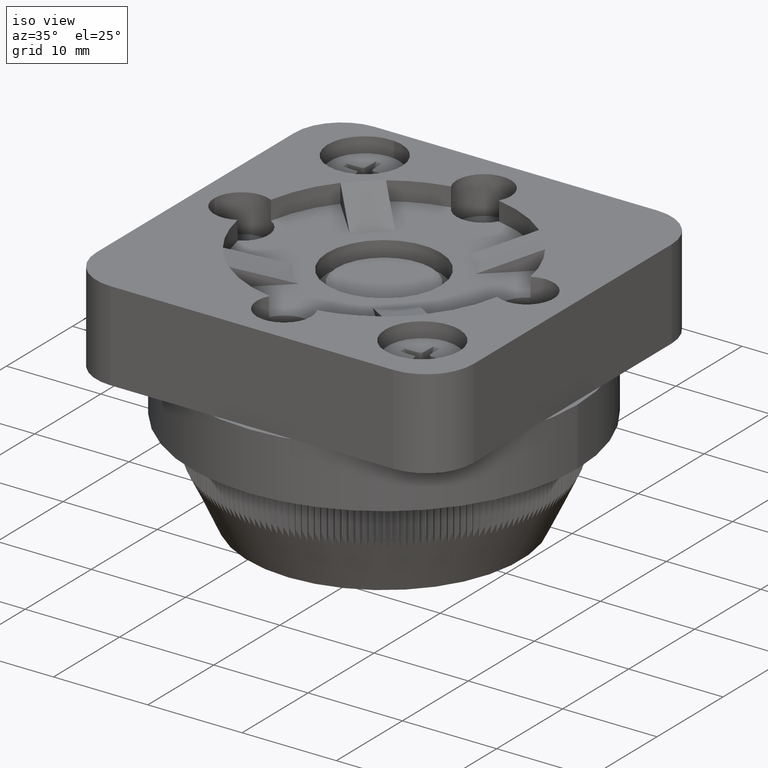
[diagram: clean part render]
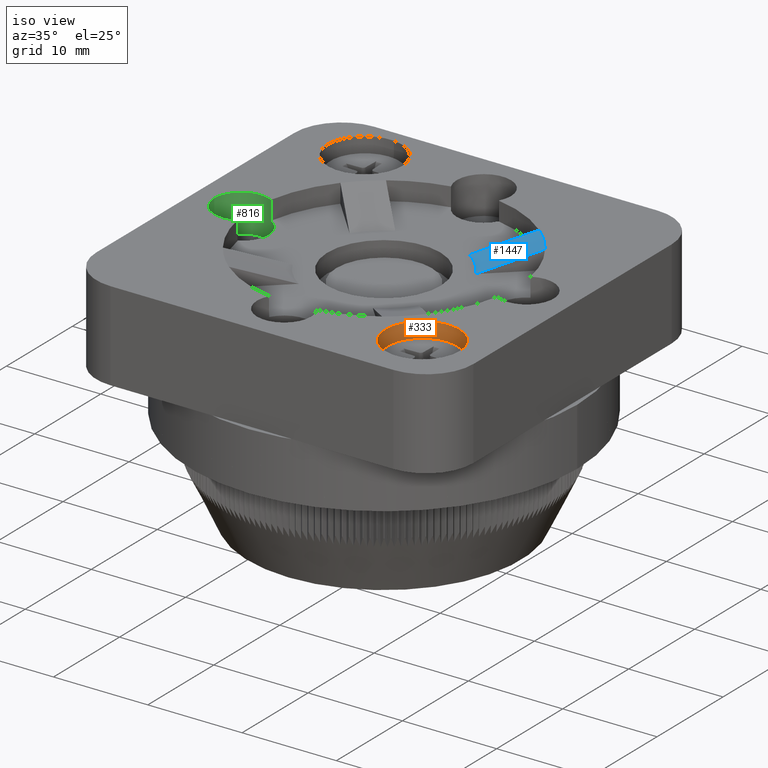
[diagram: same view with three faces highlighted in distinct colors, each labeled with its STEP entity id]
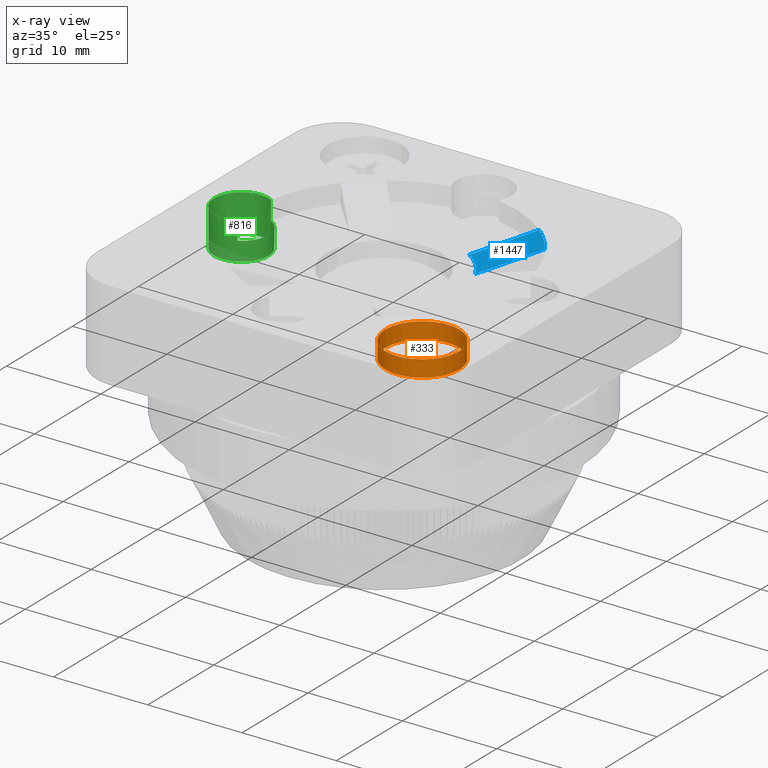
[diagram: x-ray of the same camera — body ghosted, the three highlighted faces saturated]
A machine part, iso view with three faces highlighted in distinct colors.
The next image is the same camera in x-ray (body ghosted, the three faces saturated) — at least one of them is partly hidden behind the body in this view.
Their STEP definitions:

[orange] entity #333 — the highlighted face is a freeform B-spline surface patch.
#285=CARTESIAN_POINT('',(5.796516138648894,-22.288519538058750,9.500000000000000));
#286=CARTESIAN_POINT('',(5.796516138648894,-22.288519538058750,7.734000000000001));
#287=CARTESIAN_POINT('',(5.796516138648895,-26.213519538058751,9.500000000000000));
#288=CARTESIAN_POINT('',(5.796516138648895,-26.213519538058751,7.734000000000001));
#289=CARTESIAN_POINT('',(9.721516138648894,-26.213519538058751,9.500000000000000));
#290=CARTESIAN_POINT('',(9.721516138648894,-26.213519538058751,7.734000000000001));
#291=CARTESIAN_POINT('',(13.646516138648895,-26.213519538058751,9.500000000000000));
#292=CARTESIAN_POINT('',(13.646516138648895,-26.213519538058751,7.734000000000001));
#293=CARTESIAN_POINT('',(13.646516138648895,-22.288519538058750,9.500000000000000));
#294=CARTESIAN_POINT('',(13.646516138648895,-22.288519538058750,7.734000000000001));
#295=CARTESIAN_POINT('',(13.646516138648895,-18.363519538058750,9.500000000000000));
#296=CARTESIAN_POINT('',(13.646516138648895,-18.363519538058750,7.734000000000001));
#297=CARTESIAN_POINT('',(9.721516138648894,-18.363519538058750,9.500000000000000));
#298=CARTESIAN_POINT('',(9.721516138648894,-18.363519538058750,7.734000000000001));
#299=CARTESIAN_POINT('',(5.796516138648895,-18.363519538058750,9.500000000000000));
#300=CARTESIAN_POINT('',(5.796516138648895,-18.363519538058750,7.734000000000001));
#301=CARTESIAN_POINT('',(5.796516138648894,-22.288519538058750,9.500000000000000));
#302=CARTESIAN_POINT('',(5.796516138648894,-22.288519538058750,7.734000000000001));
#310=(BOUNDED_SURFACE()B_SPLINE_SURFACE(1,2,((#285,#287,#289,#291,#293,#295,#297,#299,#301),(#286,#288,#290,#292,#294,#296,#298,#300,#302)),.UNSPECIFIED.,.F.,.T.,.U.)B_SPLINE_SURFACE_WITH_KNOTS((2,2),(3,2,2,2,3),(-0.224968152866242,0.224968152866242),(0.0,6.165375582669969,12.330751165339938,18.496126748009907,24.661502330679877),.UNSPECIFIED.)GEOMETRIC_REPRESENTATION_ITEM()RATIONAL_B_SPLINE_SURFACE(((1.0,0.707106781186548,1.0,0.707106781186548,1.0,0.707106781186548,1.0,0.707106781186548,1.0),(1.0,0.707106781186548,1.0,0.707106781186548,1.0,0.707106781186548,1.0,0.707106781186548,1.0)))REPRESENTATION_ITEM('')SURFACE());
#311=CARTESIAN_POINT('',(13.646516138648895,-22.288519538058750,9.500000000000000));
#312=VERTEX_POINT('',#311);
#313=CARTESIAN_POINT('',(9.721516138648894,-22.288519538058750,9.500000000000000));
#314=DIRECTION('',(0.0,0.0,-1.0));
#315=DIRECTION('',(1.0,0.0,0.0));
#316=AXIS2_PLACEMENT_3D('',#313,#314,#315);
#317=CIRCLE('',#316,3.925000000000000);
#318=EDGE_CURVE('',#312,#312,#317,.T.);
#319=ORIENTED_EDGE('',*,*,#318,.F.);
#320=EDGE_LOOP('',(#319));
#321=FACE_OUTER_BOUND('',#320,.T.);
#322=CARTESIAN_POINT('',(13.646516138648895,-22.288519538058750,7.734000000000001));
#323=VERTEX_POINT('',#322);
#324=CARTESIAN_POINT('',(9.721516138648894,-22.288519538058750,7.734000000000001));
#325=DIRECTION('',(0.0,0.0,1.0));
#326=DIRECTION('',(1.0,0.0,0.0));
#327=AXIS2_PLACEMENT_3D('',#324,#325,#326);
#328=CIRCLE('',#327,3.925000000000000);
#329=EDGE_CURVE('',#323,#323,#328,.T.);
#330=ORIENTED_EDGE('',*,*,#329,.F.);
#331=EDGE_LOOP('',(#330));
#332=FACE_BOUND('',#331,.T.);
#333=ADVANCED_FACE('',(#321,#332),#310,.F.);

[blue] entity #1447 — the highlighted conical surface has half-angle 71.565 deg.
#562=CARTESIAN_POINT('',(5.012228670150289,2.121568892996119,9.500000000000000));
#563=VERTEX_POINT('',#562);
#571=CARTESIAN_POINT('',(7.714350390021871,-0.827759540901713,9.500000000000000));
#572=VERTEX_POINT('',#571);
#573=CARTESIAN_POINT('',(-3.853483861351104,-8.713519538058748,9.500000000000000));
#574=DIRECTION('',(0.0,0.0,-1.0));
#575=DIRECTION('',(0.0,1.0,0.0));
#576=AXIS2_PLACEMENT_3D('',#573,#574,#575);
#577=CIRCLE('',#576,13.999999999999996);
#578=EDGE_CURVE('',#563,#572,#577,.T.);
#893=CARTESIAN_POINT('',(3.208926952075840,-4.955547544763678,7.500000000000000));
#894=VERTEX_POINT('',#893);
#901=CARTESIAN_POINT('',(0.506805232204260,-2.006219110865843,7.500000000000000));
#902=VERTEX_POINT('',#901);
#903=CARTESIAN_POINT('',(-3.853483861351104,-8.713519538058748,7.500000000000002));
#904=DIRECTION('',(0.0,0.0,-1.0));
#905=DIRECTION('',(0.0,1.0,0.0));
#906=AXIS2_PLACEMENT_3D('',#903,#904,#905);
#907=CIRCLE('',#906,7.999999999999997);
#908=EDGE_CURVE('',#902,#894,#907,.T.);
#1193=CARTESIAN_POINT('',(5.012228670150297,2.121568892996125,9.500000000000002));
#1194=CARTESIAN_POINT('',(2.145141027826422,-0.505205291274705,8.217140347274976));
#1195=CARTESIAN_POINT('',(0.506805232204264,-2.006219110865839,7.500000000000002));
#1203=(BOUNDED_CURVE()B_SPLINE_CURVE(2,(#1193,#1194,#1195),.UNSPECIFIED.,.F.,.U.)B_SPLINE_CURVE_WITH_KNOTS((3,3),(0.0,0.642943018997190),.UNSPECIFIED.)CURVE()GEOMETRIC_REPRESENTATION_ITEM()RATIONAL_B_SPLINE_CURVE((1.0,1.040957316607900,1.0))REPRESENTATION_ITEM(''));
#1204=EDGE_CURVE('',#563,#902,#1203,.T.);
#1279=CARTESIAN_POINT('',(3.208926952075842,-4.955547544763675,7.500000000000001));
#1280=CARTESIAN_POINT('',(4.847262747696336,-3.454533725174066,8.217140347274235));
#1281=CARTESIAN_POINT('',(7.714350390021879,-0.827759540901706,9.500000000000000));
#1289=(BOUNDED_CURVE()B_SPLINE_CURVE(2,(#1279,#1280,#1281),.UNSPECIFIED.,.F.,.U.)B_SPLINE_CURVE_WITH_KNOTS((3,3),(0.0,0.642943018997191),.UNSPECIFIED.)CURVE()GEOMETRIC_REPRESENTATION_ITEM()RATIONAL_B_SPLINE_CURVE((1.0,1.040957316607602,1.0))REPRESENTATION_ITEM(''));
#1290=EDGE_CURVE('',#894,#572,#1289,.T.);
#1436=CARTESIAN_POINT('',(-3.853483861351104,-8.713519538058748,8.500000000000002));
#1437=DIRECTION('',(0.0,2.182950E-016,1.0));
#1438=DIRECTION('',(0.0,1.0,0.0));
#1439=AXIS2_PLACEMENT_3D('',#1436,#1437,#1438);
#1440=CONICAL_SURFACE('',#1439,11.0,71.565051177078004);
#1441=ORIENTED_EDGE('',*,*,#1204,.T.);
#1442=ORIENTED_EDGE('',*,*,#908,.T.);
#1443=ORIENTED_EDGE('',*,*,#1290,.T.);
#1444=ORIENTED_EDGE('',*,*,#578,.F.);
#1445=EDGE_LOOP('',(#1441,#1442,#1443,#1444));
#1446=FACE_OUTER_BOUND('',#1445,.T.);
#1447=ADVANCED_FACE('',(#1446),#1440,.F.);

[green] entity #816 — the highlighted cylindrical surface (bore or boss wall) has radius 2.875 mm, axis along (0, 0, -1).
#508=CARTESIAN_POINT('',(-17.622078902673412,-11.248433853785135,9.500000000000000));
#509=VERTEX_POINT('',#508);
#517=CARTESIAN_POINT('',(-17.622078902673412,-6.178605222332361,9.500000000000000));
#518=VERTEX_POINT('',#517);
#519=CARTESIAN_POINT('',(-18.978483861351101,-8.713519538058748,9.500000000000000));
#520=DIRECTION('',(0.0,0.0,-1.0));
#521=DIRECTION('',(-1.0,0.0,0.0));
#522=AXIS2_PLACEMENT_3D('',#519,#520,#521);
#523=CIRCLE('',#522,2.875000000000000);
#524=EDGE_CURVE('',#509,#518,#523,.T.);
#774=CARTESIAN_POINT('',(-18.978483861351101,-8.713519538058748,7.500000000000000));
#775=DIRECTION('',(0.0,0.0,-1.0));
#776=DIRECTION('',(-1.0,0.0,0.0));
#777=AXIS2_PLACEMENT_3D('',#774,#775,#776);
#778=CYLINDRICAL_SURFACE('',#777,2.875000000000000);
#779=CARTESIAN_POINT('',(-21.853483861351105,-8.713519538058748,5.500000000000000));
#780=VERTEX_POINT('',#779);
#781=CARTESIAN_POINT('',(-18.978483861351101,-8.713519538058748,5.500000000000000));
#782=DIRECTION('',(0.0,0.0,-1.0));
#783=DIRECTION('',(-1.0,0.0,0.0));
#784=AXIS2_PLACEMENT_3D('',#781,#782,#783);
#785=CIRCLE('',#784,2.875000000000000);
#786=EDGE_CURVE('',#780,#780,#785,.T.);
#787=ORIENTED_EDGE('',*,*,#786,.T.);
#788=EDGE_LOOP('',(#787));
#789=FACE_OUTER_BOUND('',#788,.T.);
#790=CARTESIAN_POINT('',(-17.622078902673412,-6.178605222332361,7.500000000000000));
#791=VERTEX_POINT('',#790);
#792=CARTESIAN_POINT('',(-17.622078902673412,-6.178605222332361,9.500000000000000));
#793=DIRECTION('',(0.0,0.0,-1.0));
#794=VECTOR('',#793,2.0);
#795=LINE('',#792,#794);
#796=EDGE_CURVE('',#518,#791,#795,.T.);
#797=ORIENTED_EDGE('',*,*,#796,.F.);
#798=ORIENTED_EDGE('',*,*,#524,.F.);
#799=CARTESIAN_POINT('',(-17.622078902673412,-11.248433853785135,7.500000000000000));
#800=VERTEX_POINT('',#799);
#801=CARTESIAN_POINT('',(-17.622078902673412,-11.248433853785135,7.500000000000000));
#802=DIRECTION('',(0.0,0.0,1.0));
#803=VECTOR('',#802,2.0);
#804=LINE('',#801,#803);
#805=EDGE_CURVE('',#800,#509,#804,.T.);
#806=ORIENTED_EDGE('',*,*,#805,.F.);
#807=CARTESIAN_POINT('',(-18.978483861351101,-8.713519538058748,7.500000000000001));
#808=DIRECTION('',(0.0,0.0,-1.0));
#809=DIRECTION('',(-1.0,0.0,0.0));
#810=AXIS2_PLACEMENT_3D('',#807,#808,#809);
#811=CIRCLE('',#810,2.875000000000000);
#812=EDGE_CURVE('',#791,#800,#811,.T.);
#813=ORIENTED_EDGE('',*,*,#812,.F.);
#814=EDGE_LOOP('',(#797,#798,#806,#813));
#815=FACE_BOUND('',#814,.T.);
#816=ADVANCED_FACE('',(#789,#815),#778,.F.);